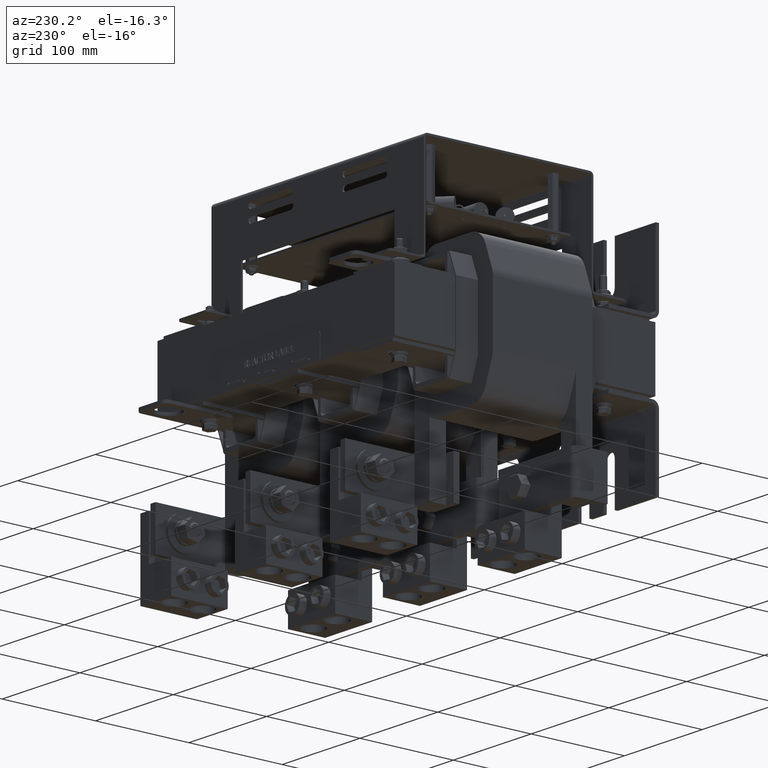
[diagram: clean part render]
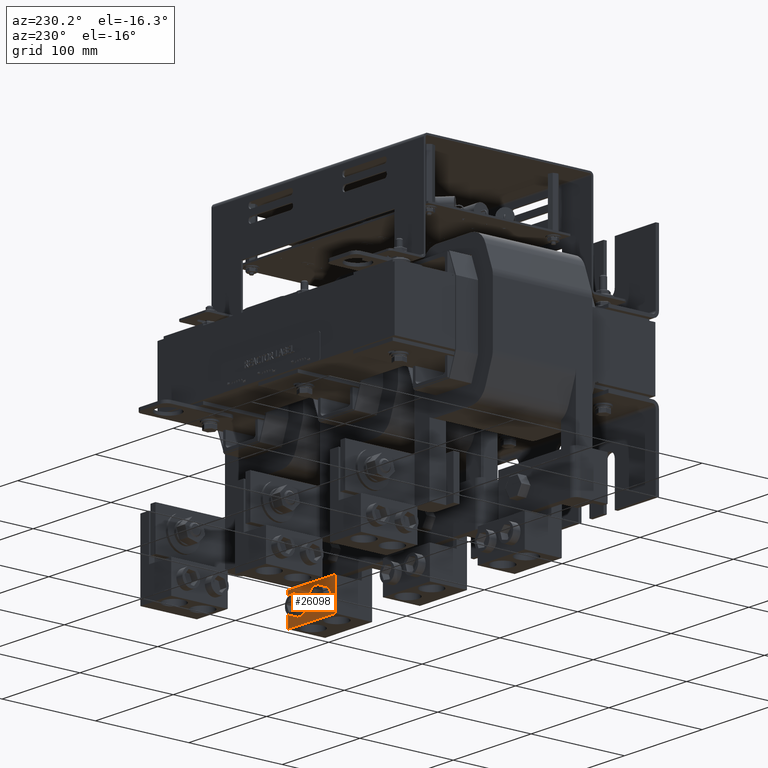
[diagram: same view with one face highlighted and labeled with its STEP entity id]
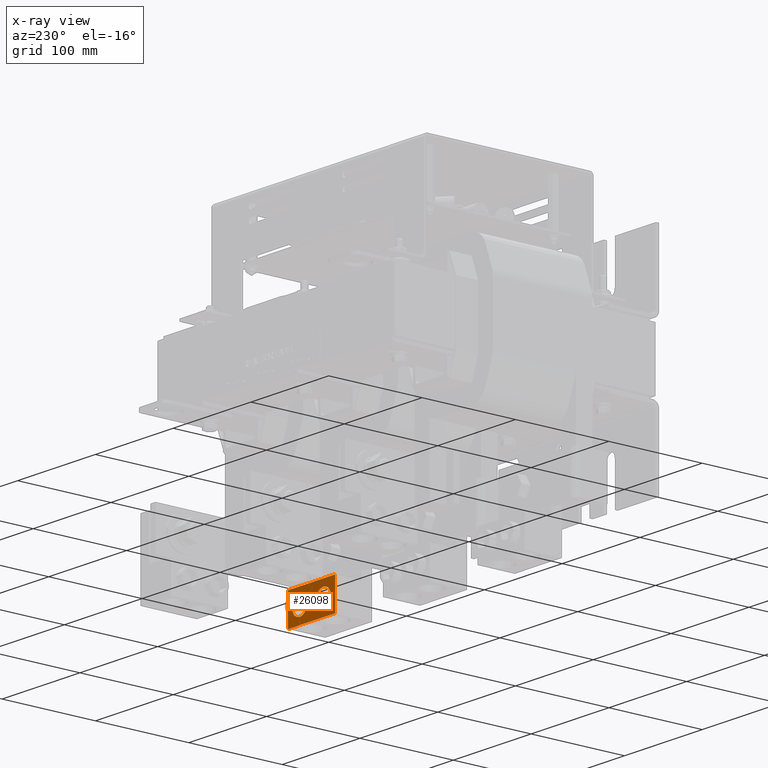
[diagram: x-ray of the same camera — body ghosted, the highlighted face saturated]
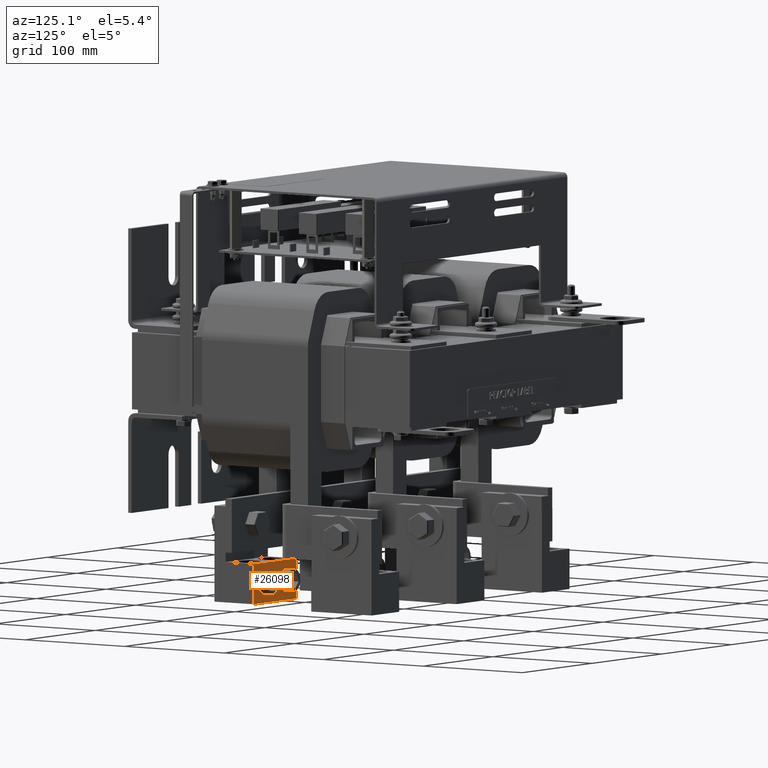
[diagram: same view with one face highlighted and labeled with its STEP entity id]
A machine part, auxiliary view. The second image highlights one B-rep face of the part: STEP entity #26098.
The next image is the same camera in x-ray: the body ghosted, the highlighted face saturated — about 0% of this face is hidden behind the body in this view.
A second angle (auxiliary view) of the same face is appended — the face is thin or edge-on in the first view.
In plain terms, the highlighted planar face has unit normal (-0, 1, 0).
Its self-contained STEP definition (entity closure, byte-faithful):
#723=B_SPLINE_CURVE_WITH_KNOTS('',3,(#43769,#43770,#43771,#43772,#43773,
#43774,#43775,#43776,#43777,#43778,#43779,#43780,#43781,#43782,#43783,#43784,
#43785,#43786,#43787,#43788,#43789,#43790,#43791,#43792,#43793,#43794,#43795,
#43796,#43797,#43798,#43799,#43800,#43801,#43802,#43803,#43804,#43805,#43806,
#43807,#43808,#43809,#43810),.UNSPECIFIED.,.T.,.F.,(4,2,2,2,2,2,2,2,2,2,
2,2,2,2,2,2,2,2,2,2,4),(-6.23300120299387,-6.03395340459687,-5.83490560619988,
-5.4368100094059,-5.05578045582565,-4.6747509022454,-4.29372134866515,-3.9126917950849,
-3.51459619829092,-3.31554839989392,-3.11650060149693,-2.91745280309994,
-2.71840500470295,-2.32030940790897,-1.93927985432872,-1.55825030074847,
-1.17722074716822,-0.796191193587968,-0.398095596793984,-0.199047798396992,
0.),.UNSPECIFIED.);
#1822=FACE_BOUND('',#5115,.T.);
#1823=FACE_BOUND('',#5116,.T.);
#2461=PLANE('',#28523);
#3595=FACE_OUTER_BOUND('',#5114,.T.);
#5114=EDGE_LOOP('',(#21591,#21592,#21593,#21594));
#5115=EDGE_LOOP('',(#21595));
#5116=EDGE_LOOP('',(#21596));
#7384=LINE('',#43842,#9787);
#7388=LINE('',#43850,#9791);
#7389=LINE('',#43852,#9792);
#7390=LINE('',#43853,#9793);
#9787=VECTOR('',#33124,0.393700787401575);
#9791=VECTOR('',#33130,0.393700787401575);
#9792=VECTOR('',#33131,0.393700787401575);
#9793=VECTOR('',#33132,0.393700787401575);
#10984=CIRCLE('',#28511,0.375);
#12876=VERTEX_POINT('',#43767);
#12878=VERTEX_POINT('',#43815);
#12885=VERTEX_POINT('',#43840);
#12886=VERTEX_POINT('',#43841);
#12889=VERTEX_POINT('',#43849);
#12890=VERTEX_POINT('',#43851);
#15934=EDGE_CURVE('',#12876,#12876,#723,.T.);
#15937=EDGE_CURVE('',#12878,#12878,#10984,.T.);
#15949=EDGE_CURVE('',#12885,#12886,#7384,.T.);
#15953=EDGE_CURVE('',#12889,#12885,#7388,.T.);
#15954=EDGE_CURVE('',#12890,#12889,#7389,.T.);
#15955=EDGE_CURVE('',#12886,#12890,#7390,.T.);
#21591=ORIENTED_EDGE('',*,*,#15953,.F.);
#21592=ORIENTED_EDGE('',*,*,#15954,.F.);
#21593=ORIENTED_EDGE('',*,*,#15955,.F.);
#21594=ORIENTED_EDGE('',*,*,#15949,.F.);
#21595=ORIENTED_EDGE('',*,*,#15934,.T.);
#21596=ORIENTED_EDGE('',*,*,#15937,.T.);
#26098=ADVANCED_FACE('',(#3595,#1822,#1823),#2461,.T.);
#28511=AXIS2_PLACEMENT_3D('',#43817,#33095,#33096);
#28523=AXIS2_PLACEMENT_3D('',#43848,#33128,#33129);
#33095=DIRECTION('center_axis',(0.,0.,-1.));
#33096=DIRECTION('ref_axis',(-1.,0.,0.));
#33124=DIRECTION('',(-4.4002920703317E-16,-1.,0.));
#33128=DIRECTION('center_axis',(0.,0.,1.));
#33129=DIRECTION('ref_axis',(1.,0.,0.));
#33130=DIRECTION('',(1.,3.35689481461465E-16,0.));
#33131=DIRECTION('',(0.,1.,0.));
#33132=DIRECTION('',(-1.,-1.22464679914735E-16,0.));
#43767=CARTESIAN_POINT('',(-2.46875,0.9655,1.3435));
#43769=CARTESIAN_POINT('Ctrl Pts',(-2.46875,0.9655,1.3435));
#43770=CARTESIAN_POINT('Ctrl Pts',(-2.44262824168019,0.9655,1.3435));
#43771=CARTESIAN_POINT('Ctrl Pts',(-2.41711179125469,0.962774858211341,
1.3435));
#43772=CARTESIAN_POINT('Ctrl Pts',(-2.36795700920477,0.952571605936632,
1.3435));
#43773=CARTESIAN_POINT('Ctrl Pts',(-2.34429410358678,0.945089835607592,
1.3435));
#43774=CARTESIAN_POINT('Ctrl Pts',(-2.27678747334497,0.916334741448598,
1.3435));
#43775=CARTESIAN_POINT('Ctrl Pts',(-2.23633421603638,0.88841430192629,1.3435));
#43776=CARTESIAN_POINT('Ctrl Pts',(-2.17223963289111,0.824319718781022,
1.3435));
#43777=CARTESIAN_POINT('Ctrl Pts',(-2.1436268178027,0.783930448568261,1.3435));
#43778=CARTESIAN_POINT('Ctrl Pts',(-2.10432867914056,0.692075277315589,
1.3435));
#43779=CARTESIAN_POINT('Ctrl Pts',(-2.09375,0.640503878422605,1.3435));
#43780=CARTESIAN_POINT('Ctrl Pts',(-2.09375,0.540496121577395,1.3435));
#43781=CARTESIAN_POINT('Ctrl Pts',(-2.10432867914056,0.48892472268441,1.3435));
#43782=CARTESIAN_POINT('Ctrl Pts',(-2.1436268178027,0.397069551431738,1.3435));
#43783=CARTESIAN_POINT('Ctrl Pts',(-2.17223963289111,0.356680281218978,
1.3435));
#43784=CARTESIAN_POINT('Ctrl Pts',(-2.23633421603638,0.29258569807371,1.3435));
#43785=CARTESIAN_POINT('Ctrl Pts',(-2.27678747334497,0.264665258551401,
1.3435));
#43786=CARTESIAN_POINT('Ctrl Pts',(-2.34429410358678,0.235910164392408,
1.3435));
#43787=CARTESIAN_POINT('Ctrl Pts',(-2.36795700920477,0.228428394063368,
1.3435));
#43788=CARTESIAN_POINT('Ctrl Pts',(-2.41711179125469,0.218225141788659,
1.3435));
#43789=CARTESIAN_POINT('Ctrl Pts',(-2.44262824168019,0.2155,1.3435));
#43790=CARTESIAN_POINT('Ctrl Pts',(-2.49487175831982,0.2155,1.3435));
#43791=CARTESIAN_POINT('Ctrl Pts',(-2.52038820874532,0.218225141788659,
1.3435));
#43792=CARTESIAN_POINT('Ctrl Pts',(-2.56954299079523,0.228428394063368,
1.3435));
#43793=CARTESIAN_POINT('Ctrl Pts',(-2.59320589641322,0.235910164392408,
1.3435));
#43794=CARTESIAN_POINT('Ctrl Pts',(-2.66071252665504,0.264665258551401,
1.3435));
#43795=CARTESIAN_POINT('Ctrl Pts',(-2.70116578396362,0.29258569807371,1.3435));
#43796=CARTESIAN_POINT('Ctrl Pts',(-2.76526036710889,0.356680281218978,
1.3435));
#43797=CARTESIAN_POINT('Ctrl Pts',(-2.7938731821973,0.397069551431738,1.3435));
#43798=CARTESIAN_POINT('Ctrl Pts',(-2.83317132085944,0.48892472268441,1.3435));
#43799=CARTESIAN_POINT('Ctrl Pts',(-2.84375,0.540496121577395,1.3435));
#43800=CARTESIAN_POINT('Ctrl Pts',(-2.84375,0.640503878422605,1.3435));
#43801=CARTESIAN_POINT('Ctrl Pts',(-2.83317132085944,0.692075277315589,
1.3435));
#43802=CARTESIAN_POINT('Ctrl Pts',(-2.7938731821973,0.783930448568261,1.3435));
#43803=CARTESIAN_POINT('Ctrl Pts',(-2.76526036710889,0.824319718781022,
1.3435));
#43804=CARTESIAN_POINT('Ctrl Pts',(-2.70116578396362,0.88841430192629,1.3435));
#43805=CARTESIAN_POINT('Ctrl Pts',(-2.66071252665504,0.916334741448598,
1.3435));
#43806=CARTESIAN_POINT('Ctrl Pts',(-2.59320589641322,0.945089835607592,
1.3435));
#43807=CARTESIAN_POINT('Ctrl Pts',(-2.56954299079523,0.952571605936632,
1.3435));
#43808=CARTESIAN_POINT('Ctrl Pts',(-2.52038820874532,0.962774858211341,
1.3435));
#43809=CARTESIAN_POINT('Ctrl Pts',(-2.49487175831982,0.9655,1.3435));
#43810=CARTESIAN_POINT('Ctrl Pts',(-2.46875,0.9655,1.3435));
#43815=CARTESIAN_POINT('',(-2.09375,1.7935,1.3435));
#43817=CARTESIAN_POINT('Origin',(-2.46875,1.7935,1.3435));
#43840=CARTESIAN_POINT('',(-1.8125,2.384,1.3435));
#43841=CARTESIAN_POINT('',(-1.8125,0.,1.3435));
#43842=CARTESIAN_POINT('',(-1.8125,0.,1.3435));
#43848=CARTESIAN_POINT('Origin',(-2.46875,1.192,1.3435));
#43849=CARTESIAN_POINT('',(-3.125,2.384,1.3435));
#43850=CARTESIAN_POINT('',(-6.99353086378051E-16,2.384,1.3435));
#43851=CARTESIAN_POINT('',(-3.125,-3.82702124733548E-16,1.3435));
#43852=CARTESIAN_POINT('',(-3.125,2.384,1.3435));
#43853=CARTESIAN_POINT('',(-3.125,-3.82702124733548E-16,1.3435));